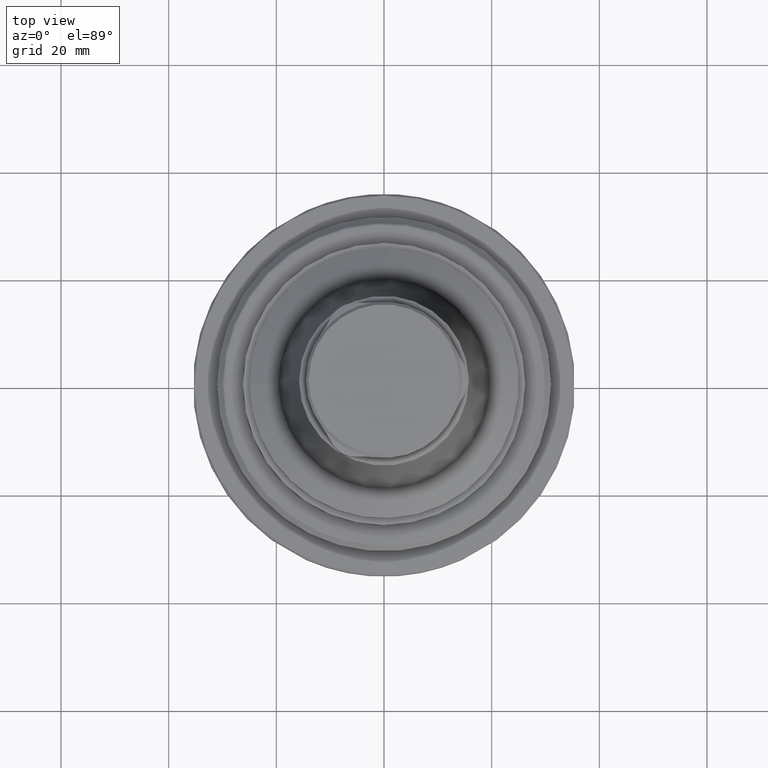
[diagram: clean part render]
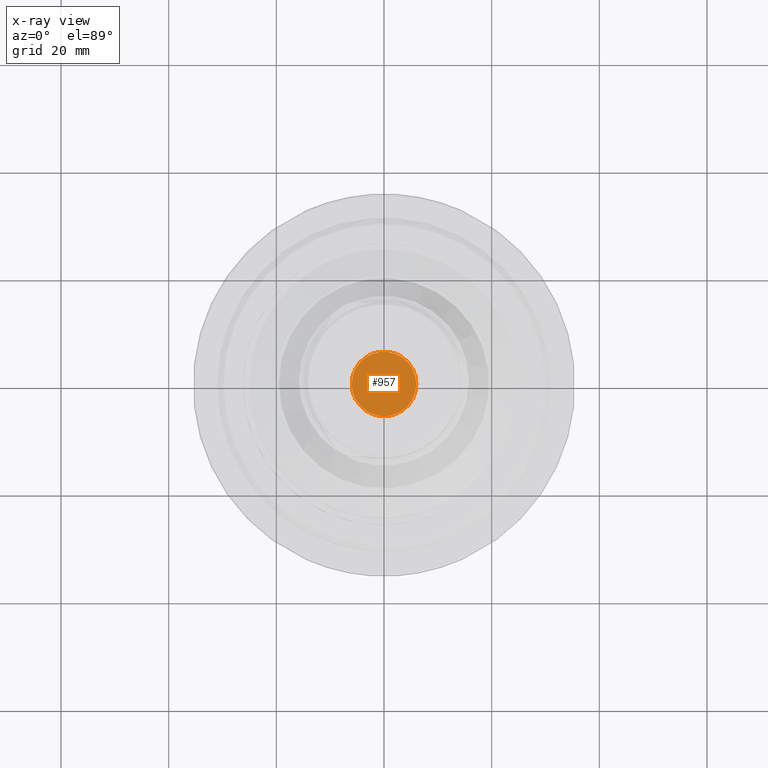
[diagram: x-ray — body ghosted, one internal face saturated and labeled with its STEP entity id]
A machine part, top view, then the same camera in x-ray: the body is ghosted and one INTERNAL B-rep face — a face not visible from any outside direction — is saturated and labeled: STEP entity #957.
In plain terms, the highlighted planar face has unit normal (0, 0, 1).
Its self-contained STEP definition (entity closure, byte-faithful):
#408=ORIENTED_EDGE('',*,*,#539,.F.);
#539=EDGE_CURVE('',#630,#630,#685,.T.);
#630=VERTEX_POINT('',#1813);
#685=CIRCLE('',#1089,5.99999999999992);
#775=EDGE_LOOP('',(#408));
#871=FACE_BOUND('',#775,.T.);
#894=PLANE('',#1088);
#957=ADVANCED_FACE('',(#871),#894,.F.);
#1088=AXIS2_PLACEMENT_3D('',#1811,#1351,#1352);
#1089=AXIS2_PLACEMENT_3D('',#1812,#1353,#1354);
#1351=DIRECTION('',(0.,0.,1.));
#1352=DIRECTION('',(1.,0.,0.));
#1353=DIRECTION('',(0.,0.,1.));
#1354=DIRECTION('',(1.,0.,0.));
#1811=CARTESIAN_POINT('',(5.99999999999992,0.,8.));
#1812=CARTESIAN_POINT('',(0.,0.,8.));
#1813=CARTESIAN_POINT('',(5.99999999999992,0.,8.));